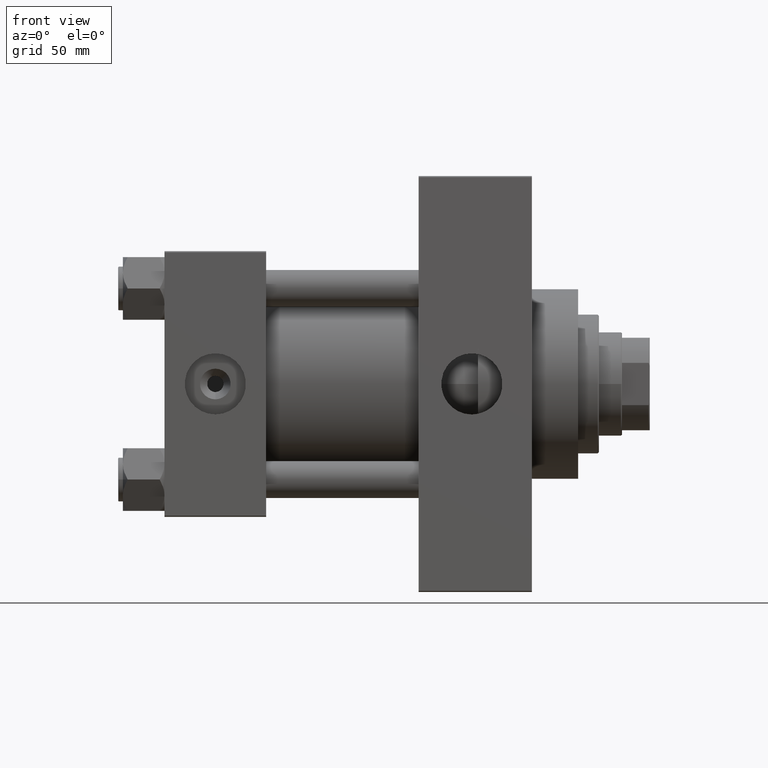
[diagram: clean part render]
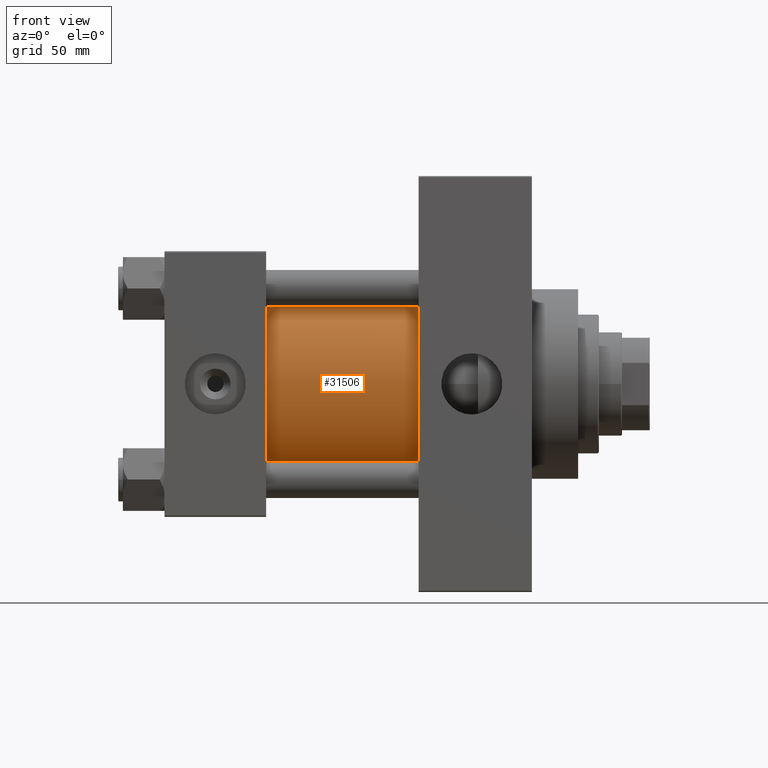
[diagram: same view with one face highlighted and labeled with its STEP entity id]
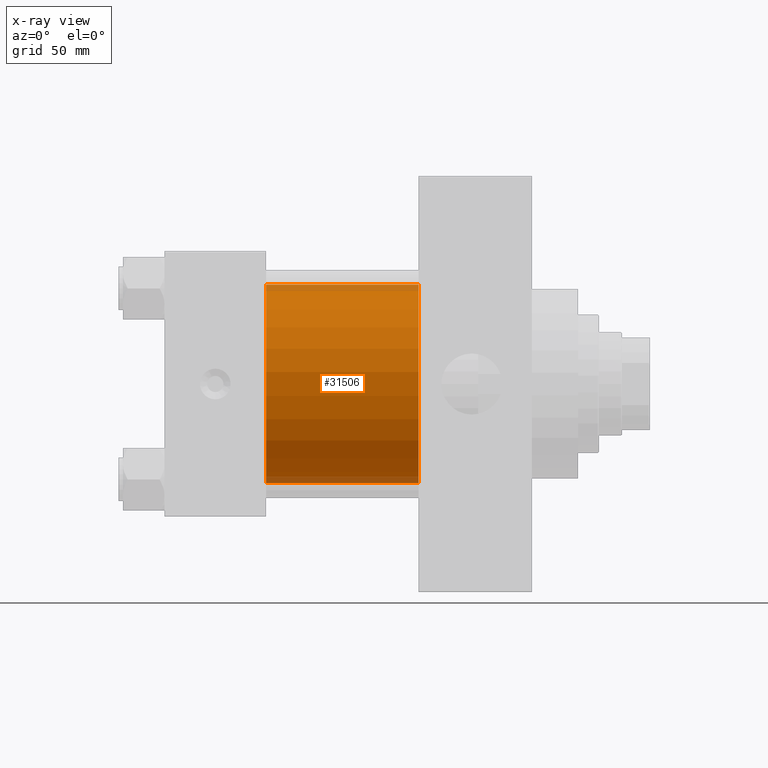
[diagram: x-ray of the same camera — body ghosted, the highlighted face saturated]
A machine part, front view. The second image highlights one B-rep face of the part: STEP entity #31506.
The next image is the same camera in x-ray: the body ghosted, the highlighted face saturated — about 7% of this face is hidden behind the body in this view.
In plain terms, the highlighted cylindrical surface (partial cylindrical patch) has radius 43 mm, axis along (-1, -0, -0).
Its self-contained STEP definition (entity closure, byte-faithful):
#1117 = CYLINDRICAL_SURFACE ( 'NONE', #40063, 43.00000000000000000 ) ;
#2606 = LINE ( 'NONE', #37599, #41222 ) ;
#4798 = CARTESIAN_POINT ( 'NONE',  ( 110.0000000000000000, 2.663896022368408223E-15, -43.00000000000000000 ) ) ;
#5701 = EDGE_CURVE ( 'NONE', #35617, #8615, #19147, .T. ) ;
#5984 = CARTESIAN_POINT ( 'NONE',  ( 110.0000000000000000, -2.602085213965210642E-15, 0.000000000000000000 ) ) ;
#7027 = VECTOR ( 'NONE', #27683, 1000.000000000000000 ) ;
#8615 = VERTEX_POINT ( 'NONE', #11204 ) ;
#11204 = CARTESIAN_POINT ( 'NONE',  ( 44.00000000000000000, 2.663896022368408223E-15, -43.00000000000000000 ) ) ;
#14626 = VERTEX_POINT ( 'NONE', #37914 ) ;
#19147 = LINE ( 'NONE', #4798, #7027 ) ;
#20443 = DIRECTION ( 'NONE',  ( 0.000000000000000000, 0.000000000000000000, 1.000000000000000000 ) ) ;
#21159 = CARTESIAN_POINT ( 'NONE',  ( 44.00000000000000000, -2.602085213965210642E-15, 43.00000000000000000 ) ) ;
#22268 = ORIENTED_EDGE ( 'NONE', *, *, #39769, .T. ) ;
#24045 = ORIENTED_EDGE ( 'NONE', *, *, #45508, .T. ) ;
#25733 = CIRCLE ( 'NONE', #43424, 43.00000000000000000 ) ;
#27571 = EDGE_CURVE ( 'NONE', #14626, #35617, #28635, .T. ) ;
#27683 = DIRECTION ( 'NONE',  ( -1.000000000000000000, -0.000000000000000000, -0.000000000000000000 ) ) ;
#27769 = CARTESIAN_POINT ( 'NONE',  ( 110.0000000000000000, -2.602085213965210642E-15, 0.000000000000000000 ) ) ;
#28635 = CIRCLE ( 'NONE', #41560, 43.00000000000000000 ) ;
#29127 = DIRECTION ( 'NONE',  ( 0.000000000000000000, 0.000000000000000000, -1.000000000000000000 ) ) ;
#30709 = ORIENTED_EDGE ( 'NONE', *, *, #27571, .F. ) ;
#31506 = ADVANCED_FACE ( 'NONE', ( #32297 ), #1117, .T. ) ;
#32297 = FACE_OUTER_BOUND ( 'NONE', #41852, .T. ) ;
#35617 = VERTEX_POINT ( 'NONE', #43481 ) ;
#37599 = CARTESIAN_POINT ( 'NONE',  ( 110.0000000000000000, -2.602085213965210642E-15, 43.00000000000000000 ) ) ;
#37914 = CARTESIAN_POINT ( 'NONE',  ( 110.0000000000000000, -2.602085213965210642E-15, 43.00000000000000000 ) ) ;
#39769 = EDGE_CURVE ( 'NONE', #49366, #8615, #25733, .T. ) ;
#40063 = AXIS2_PLACEMENT_3D ( 'NONE', #27769, #47677, #43158 ) ;
#41222 = VECTOR ( 'NONE', #49429, 1000.000000000000000 ) ;
#41560 = AXIS2_PLACEMENT_3D ( 'NONE', #5984, #48030, #29127 ) ;
#41852 = EDGE_LOOP ( 'NONE', ( #45955, #30709, #24045, #22268 ) ) ;
#43158 = DIRECTION ( 'NONE',  ( 0.000000000000000000, 0.000000000000000000, 1.000000000000000000 ) ) ;
#43424 = AXIS2_PLACEMENT_3D ( 'NONE', #44126, #43877, #20443 ) ;
#43481 = CARTESIAN_POINT ( 'NONE',  ( 110.0000000000000000, 2.663896022368408223E-15, -43.00000000000000000 ) ) ;
#43877 = DIRECTION ( 'NONE',  ( 1.000000000000000000, -0.000000000000000000, 0.000000000000000000 ) ) ;
#44126 = CARTESIAN_POINT ( 'NONE',  ( 44.00000000000000000, -2.602085213965210642E-15, 0.000000000000000000 ) ) ;
#45508 = EDGE_CURVE ( 'NONE', #14626, #49366, #2606, .T. ) ;
#45955 = ORIENTED_EDGE ( 'NONE', *, *, #5701, .F. ) ;
#47677 = DIRECTION ( 'NONE',  ( -1.000000000000000000, -0.000000000000000000, -0.000000000000000000 ) ) ;
#48030 = DIRECTION ( 'NONE',  ( 1.000000000000000000, 0.000000000000000000, 0.000000000000000000 ) ) ;
#49366 = VERTEX_POINT ( 'NONE', #21159 ) ;
#49429 = DIRECTION ( 'NONE',  ( -1.000000000000000000, -0.000000000000000000, -0.000000000000000000 ) ) ;